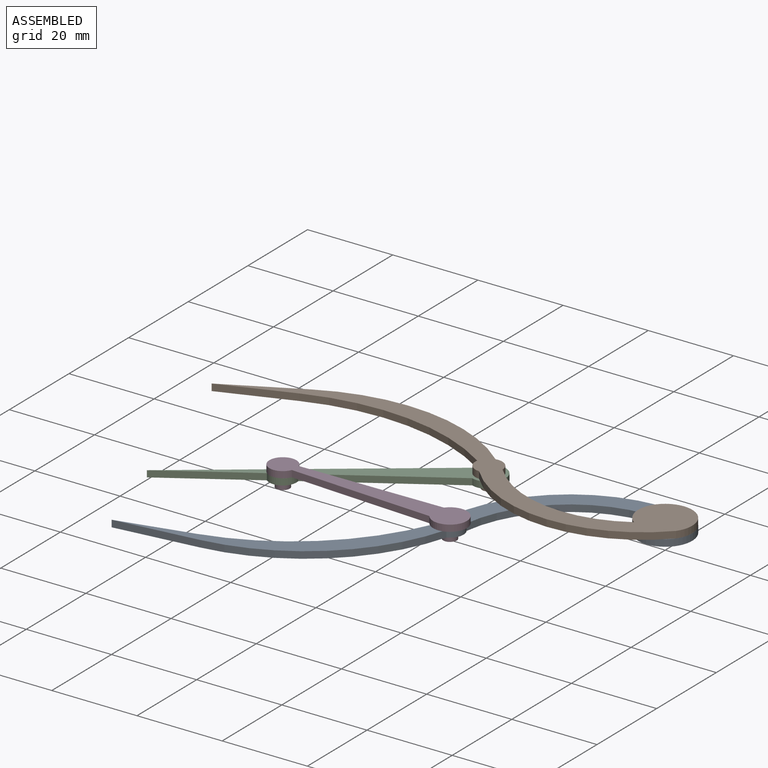
[diagram: assembled view]
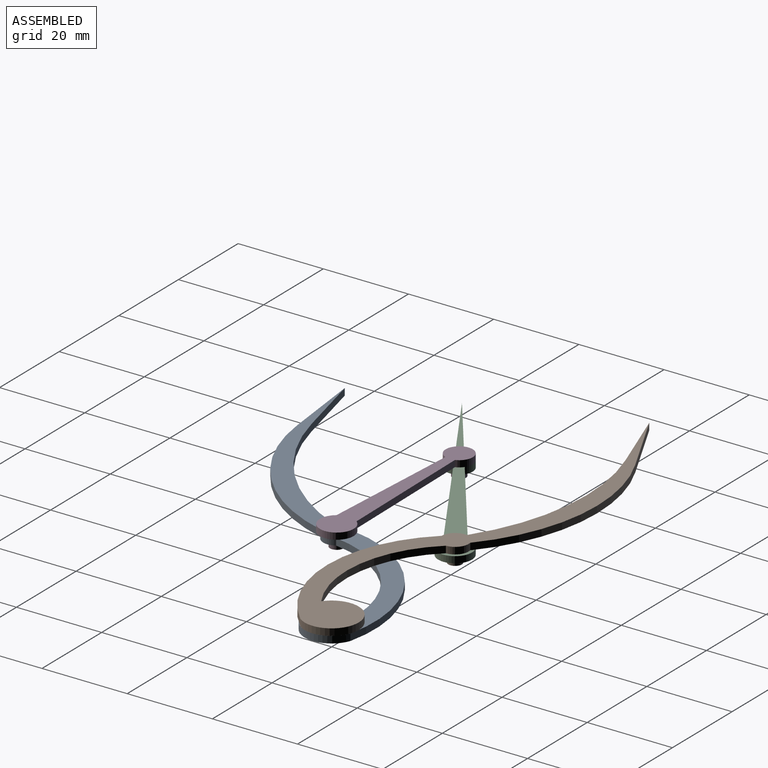
[diagram: assembled view, second angle]
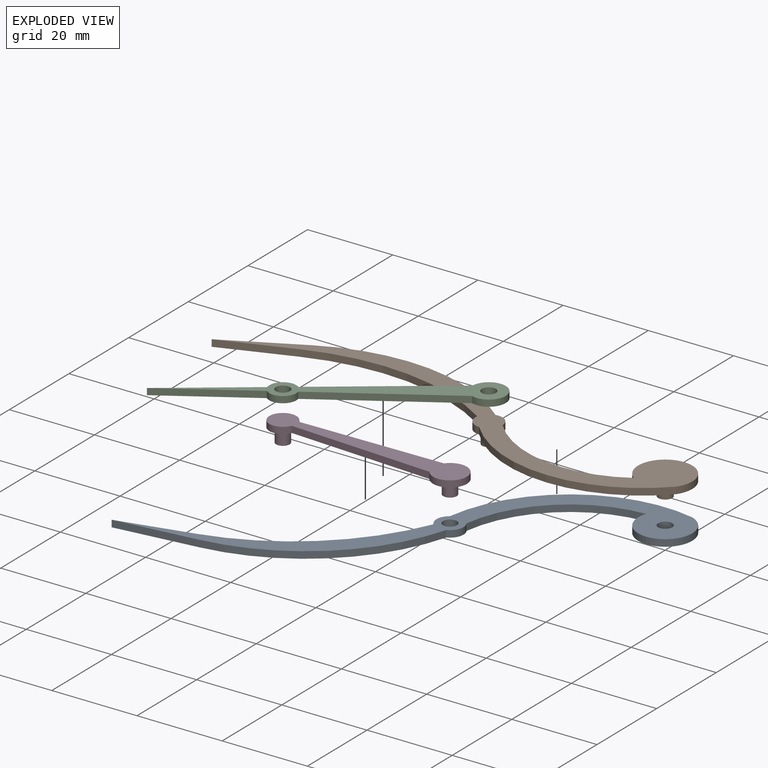
[diagram: exploded view]
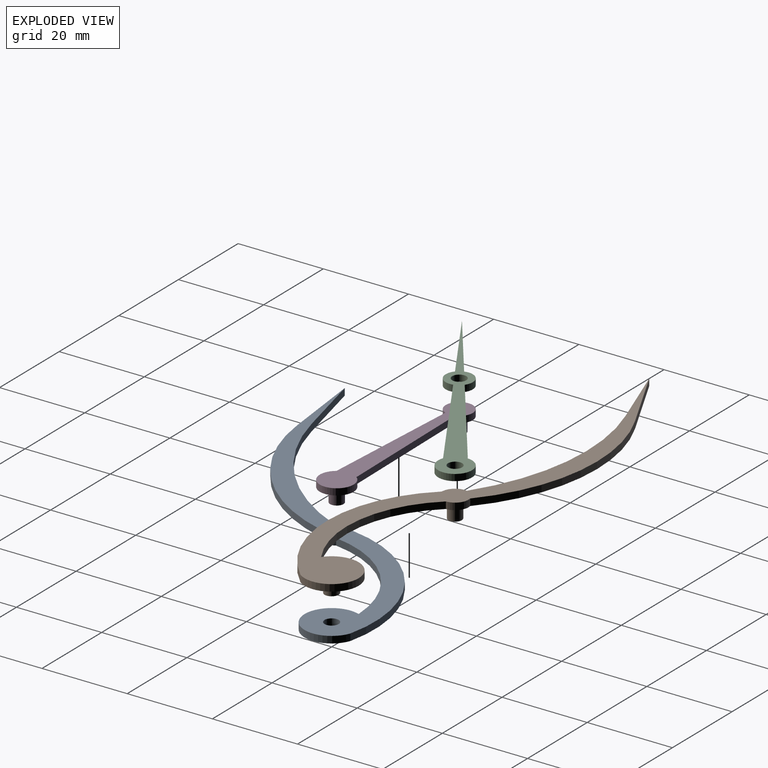
[diagram: exploded view, second angle]
ASSEMBLY  parts=4 mates=4
PART A: 13 faces, bbox 112.9x27.1x1.6 mm
  f0: cylinder r=27.18mm len=34.45mm, axis (0,0,-1), area 60.5mm2, adj f1,f10,f11,f12
  f1: cylinder r=3.17mm len=3.79mm, axis (0,0,-1), area 8.9mm2, adj f0,f2,f11,f12
  f2: cylinder r=42.6mm len=47.17mm, axis (0,0,-1), area 80.7mm2, adj f1,f3,f11,f12
  f3: plane 17.31x8.82mm, normal (-0.45,0.89,0), area 31.1mm2, adj f2,f4,f11,f12
  f4: plane 16.48x6mm, normal (0.34,-0.94,0), area 28.1mm2, adj f3,f5,f11,f12
  f5: cylinder r=50.8mm len=45.49mm, axis (0,0,-1), area 76.1mm2, adj f4,f6,f11,f12
  f6: cylinder r=3.17mm len=3.75mm, axis (0,0,-1), area 8.8mm2, adj f5,f7,f11,f12
  f7: cylinder r=31.75mm len=46.63mm, axis (0,0,-1), area 83.8mm2, adj f6,f10,f11,f12
  f8: cylinder r=1.65mm len=3.3mm, axis (0,0,-1), area 16.6mm2, adj f11,f12
  f9: cylinder r=1.65mm len=3.3mm, axis (0,0,-1), area 16.6mm2, adj f11,f12
  f10: cylinder r=6.35mm len=12.7mm, axis (0,0,-1), area 47.8mm2, adj f0,f7,f11,f12
  f11: plane 112.85x27.11mm, normal (0,0,1), area 551.9mm2, adj f0,f1,f2,f3,f4,f5,f6,f7
  f12: plane 112.85x27.11mm, normal (0,0,-1), area 551.9mm2, adj f0,f1,f2,f3,f4,f5,f6,f7
PART B: 15 faces, bbox 112.9x27.1x4.8 mm
  f0: cylinder r=27.18mm len=34.45mm, axis (0,0,-1), area 60.5mm2, adj f1,f8,f9,f10
  f1: cylinder r=3.17mm len=3.79mm, axis (0,0,-1), area 8.9mm2, adj f0,f2,f9,f10
  f2: cylinder r=42.6mm len=47.17mm, axis (0,0,-1), area 80.7mm2, adj f1,f3,f9,f10
  f3: plane 17.31x8.82mm, normal (-0.45,0.89,0), area 31.1mm2, adj f2,f4,f9,f10
  f4: plane 16.48x6mm, normal (0.34,-0.94,0), area 28.1mm2, adj f3,f5,f9,f10
  f5: cylinder r=50.8mm len=45.49mm, axis (0,0,-1), area 76.1mm2, adj f4,f6,f9,f10
  f6: cylinder r=3.17mm len=3.75mm, axis (0,0,-1), area 8.8mm2, adj f5,f7,f9,f10
  f7: cylinder r=31.75mm len=46.63mm, axis (0,0,-1), area 83.8mm2, adj f6,f8,f9,f10
  f8: cylinder r=6.35mm len=12.7mm, axis (0,0,-1), area 47.8mm2, adj f0,f7,f9,f10
  f9: plane 112.85x27.11mm, normal (0,0,1), area 569mm2, adj f0,f1,f2,f3,f4,f5,f6,f7
  f10: plane 112.85x27.11mm, normal (0,0,-1), area 552.6mm2, adj f0,f1,f2,f3,f4,f5,f6,f7
  f11: plane 3.18x3.18mm, normal (0,0,-1), area 7.9mm2, adj f12
  f12: cylinder r=1.59mm len=3.18mm, axis (0,0,1), area 31.7mm2, adj f10,f11
  f13: plane 3.3x3.3mm, normal (0,0,-1), area 8.6mm2, adj f14
  f14: cylinder r=1.65mm len=3.3mm, axis (0,0,1), area 32.9mm2, adj f10,f13
PART C: 11 faces, bbox 69.8x7.9x1.5 mm
  f0: plane 33.47x1.52mm, normal (-0.04,1,0), area 51.1mm2, adj f1,f8,f9,f10
  f1: cylinder r=3.17mm len=6.03mm, axis (0,0,-1), area 12.1mm2, adj f0,f2,f9,f10
  f2: plane 23.11x1.52mm, normal (-0.04,1,0), area 35.2mm2, adj f1,f3,f9,f10
  f3: plane 23.11x1.52mm, normal (-0.04,-1,0), area 35.2mm2, adj f2,f4,f9,f10
  f4: cylinder r=3.17mm len=6.03mm, axis (0,0,-1), area 12.1mm2, adj f3,f5,f9,f10
  f5: plane 33.47x1.52mm, normal (-0.04,-1,0), area 51.1mm2, adj f4,f8,f9,f10
  f6: cylinder r=1.65mm len=3.3mm, axis (0,0,-1), area 15.8mm2, adj f9,f10
  f7: cylinder r=1.65mm len=3.3mm, axis (0,0,-1), area 15.8mm2, adj f9,f10
  f8: cylinder r=3.97mm len=7.94mm, axis (0,0,-1), area 30.2mm2, adj f0,f5,f9,f10
  f9: plane 69.75x7.94mm, normal (0,0,1), area 198.1mm2, adj f0,f1,f2,f3,f4,f5,f6,f7
  f10: plane 69.75x7.94mm, normal (0,0,-1), area 198.1mm2, adj f0,f1,f2,f3,f4,f5,f6,f7
PART D: 10 faces, bbox 47x7.9x4.8 mm
  f0: plane 33.72x1.52mm, normal (-0.04,1,0), area 51.4mm2, adj f1,f3,f4,f5
  f1: cylinder r=3.17mm len=6.35mm, axis (0,0,-1), area 26.8mm2, adj f0,f2,f4,f5
  f2: plane 33.72x1.52mm, normal (-0.04,-1,0), area 51.4mm2, adj f1,f3,f4,f5
  f3: cylinder r=3.97mm len=7.94mm, axis (0,0,-1), area 30.2mm2, adj f0,f2,f4,f5
  f4: plane 47x7.94mm, normal (0,0,1), area 197.1mm2, adj f0,f1,f2,f3
  f5: plane 47x7.94mm, normal (0,0,-1), area 181.2mm2, adj f0,f1,f2,f3,f7,f9
  f6: plane 3.18x3.18mm, normal (0,0,-1), area 7.9mm2, adj f7
  f7: cylinder r=1.59mm len=3.25mm, axis (0,0,1), area 32.4mm2, adj f5,f6
  f8: plane 3.18x3.18mm, normal (0,0,-1), area 7.9mm2, adj f9
  f9: cylinder r=1.59mm len=3.25mm, axis (0,0,1), area 32.4mm2, adj f5,f8
PLACE A rot(axis=(-0.96,-0.29,0),180deg) t=(0,0,0)mm
PLACE B at identity fixed
PLACE C rot(axis=(0,0,1),33.8deg) t=(-41.4,0,-1.52)mm
PLACE D rot(axis=(0,0,-1),1.2deg) t=(-34.47,-22.94,0)mm
MATE revolute B.f12 <-> C.f6  axis (0,0,-1) through (-41.4,0,0)mm
MATE revolute A.f10 <-> B.f14  axis (0,0,1) through (0,0,0)mm
MATE revolute C.f7 <-> D.f1  axis (0,0,1) through (-74.31,-22.07,0)mm
MATE revolute A.f8 <-> D.f9  axis (0,0,1) through (-34.47,-22.94,0)mm
